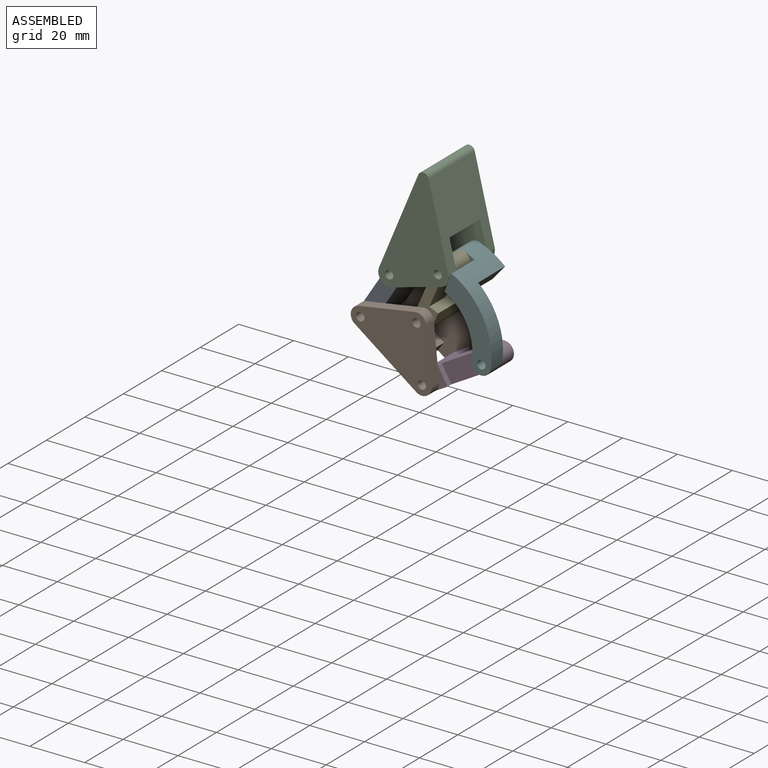
[diagram: assembled view]
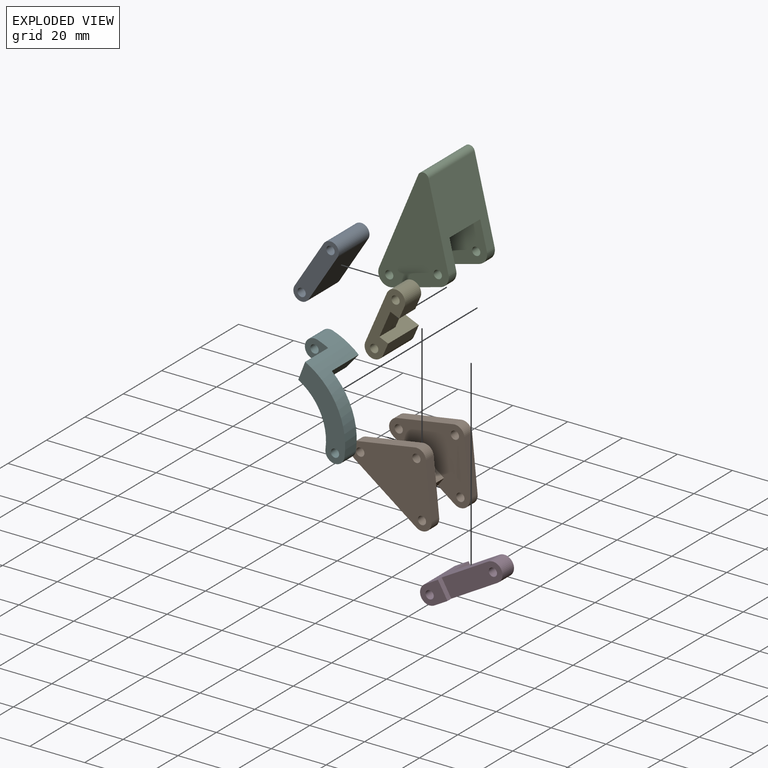
[diagram: exploded view]
GUIDED TOUR — MATED ASSEMBLY (Onshape document 30bc47aefb32f1628b6d9ee9, AutoMate assembly 30bc47aefb32f1628b6d9ee9_9f35e51de1579b1492619786_9b856f19b286847820a12c2f_default)

This assembly has 6 components, labeled P0..P5 below (a component is one placed occurrence of a part; the same part can appear more than once), held together by 7 mates. A mate is a constraint between two components; its type names the relative motion it leaves free:
  REVOLUTE — leaves rotation about the listed axis free (a hinge).
Axis/direction vectors are unit vectors and 'through' points are millimeter coordinates, both in the assembly's world frame.

MATES
  1. REVOLUTE "轉動 6": P5 <-> P2, axis (0.000, 1.000, 0.000) through (68.20, 163.56, -32.81) mm
  2. REVOLUTE "轉動 3": P3 <-> P1, axis (0.000, -1.000, 0.000) through (62.41, 163.56, -70.80) mm
  3. REVOLUTE "轉動 2": P0 <-> P1, axis (0.000, -1.000, 0.000) through (39.94, 147.56, -54.26) mm
  4. REVOLUTE "轉動 7": P3 <-> P5, axis (0.000, -1.000, 0.000) through (84.08, 149.56, -58.32) mm
  5. REVOLUTE "轉動 4": P2 <-> P0, axis (0.000, 1.000, 0.000) through (50.49, 147.56, -37.62) mm
  6. REVOLUTE "轉動 1": P2 <-> P4, axis (0.000, 1.000, 0.000) through (68.20, 147.56, -32.81) mm
  7. REVOLUTE "轉動 5": P4 <-> P1, axis (0.000, 1.000, 0.000) through (60.41, 163.56, -50.85) mm

ASSEMBLY ORDER
  1. P2 — the base component [order verified]
  2. P4 [order verified]
  3. P5 [order verified]
  4. P3 [order verified]
  5. P1 [order verified]
  6. P0 [order verified]
Order-tag legend:
  [order verified] — this step's position reverses a verified removal order: the component was checked to insert without passing through the ones already placed.

Of the 6 components, 2 carry the full construction recipe — the FeatureScript program that regenerates the part's solid from scratch; the rest are supplied as boundary geometry only.
Each toured component is shown spotlighted twice — in the assembled view, then in the exploded view, where a leader line traces a displaced component back to its assembled socket (saturated green if recipe-attached, orange if geometry-only; every other component desaturated gray) — followed by its recipe or geometry summary and the mates that hold it.
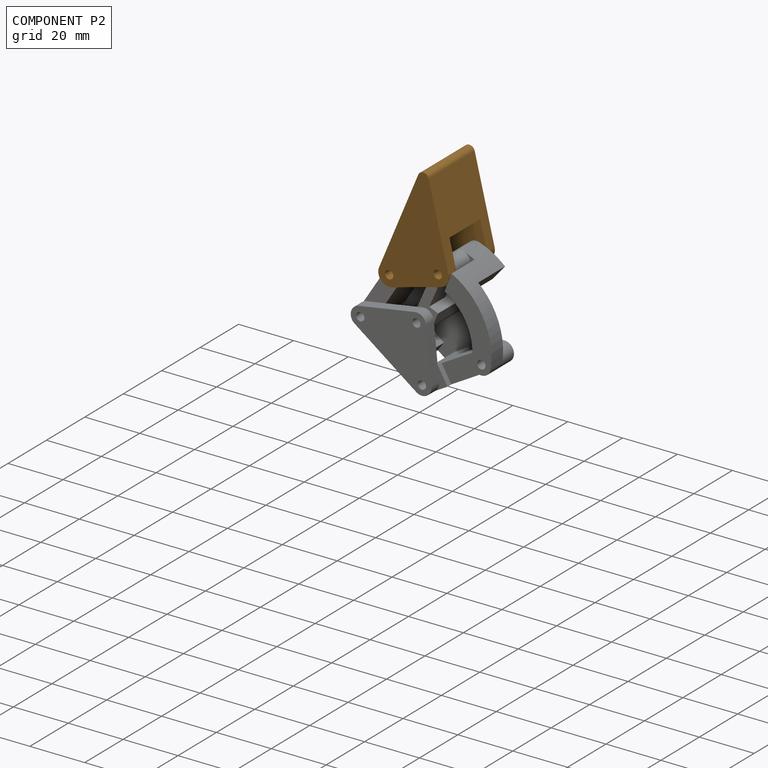
[diagram: component P2 — assembled]
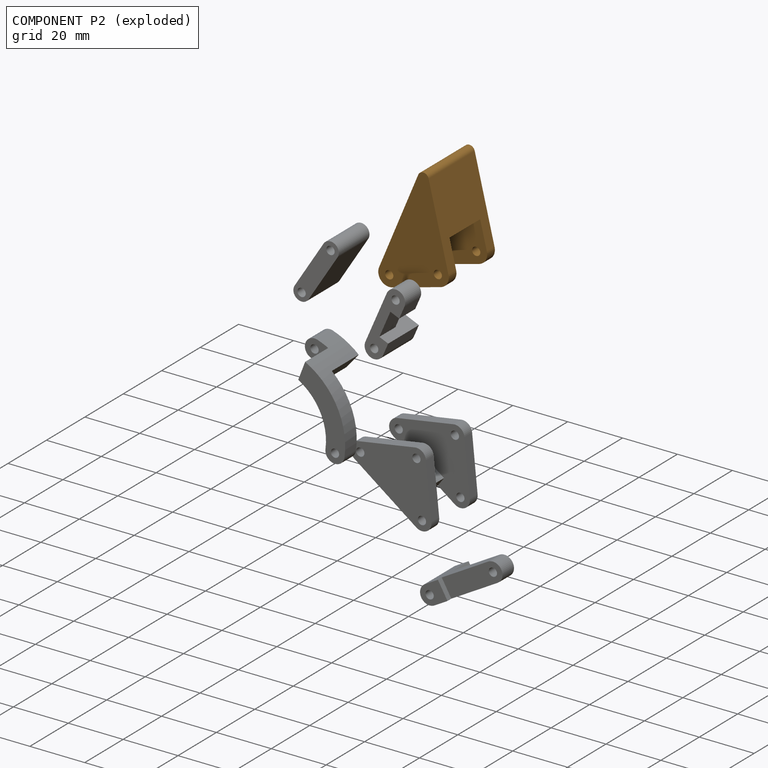
[diagram: component P2 — exploded]
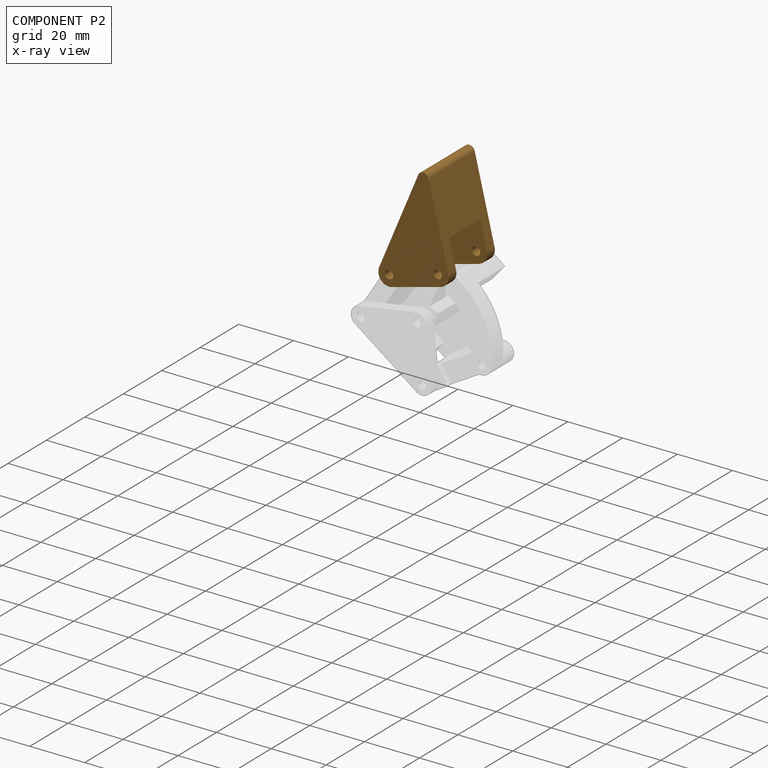
[diagram: component P2 — x-ray view]
COMPONENT P2 — geometry summary (no construction recipe available for this part):
  bounding box: 36.5 x 27.2 x 24.0 mm
  B-rep topology: 1 solid, 18 faces, 104 edges
  volume: 8675 mm^3 (36% of its bounding box)
  symmetry: mirror-symmetric across its y mid-plane
Held by: REVOLUTE mate "轉動 6" to P5; REVOLUTE mate "轉動 4" to P0; REVOLUTE mate "轉動 1" to P4.
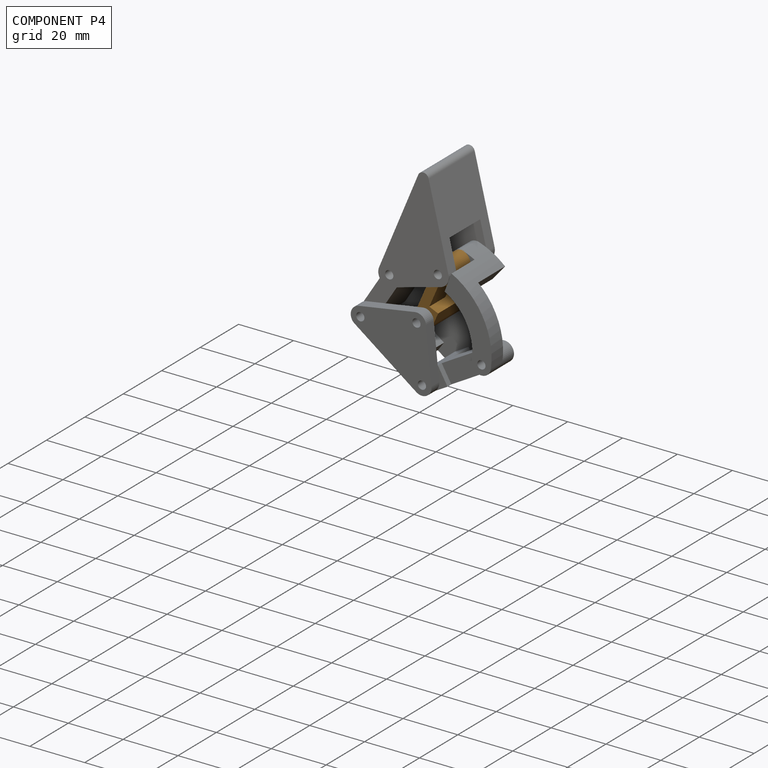
[diagram: component P4 — assembled]
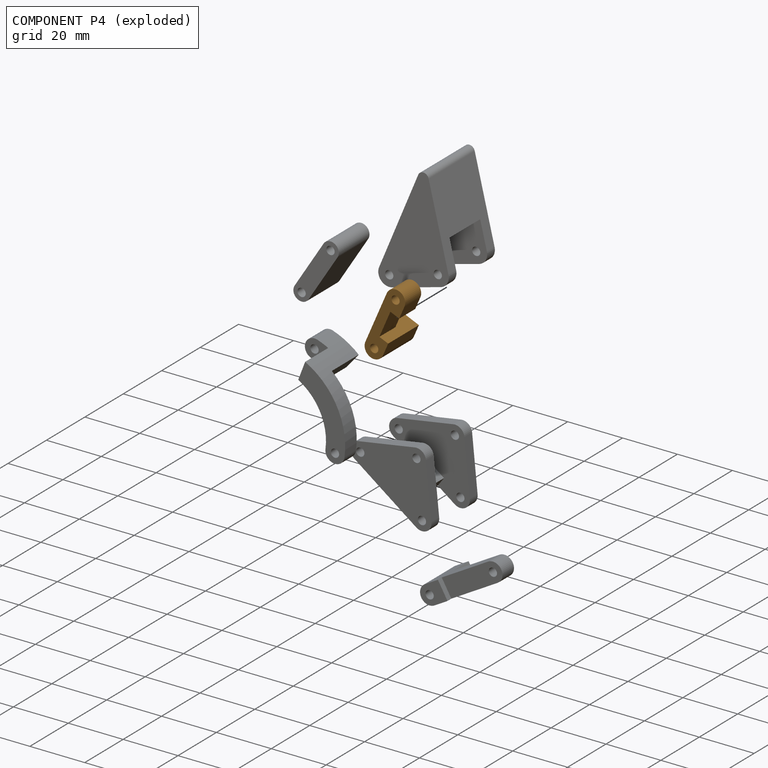
[diagram: component P4 — exploded]
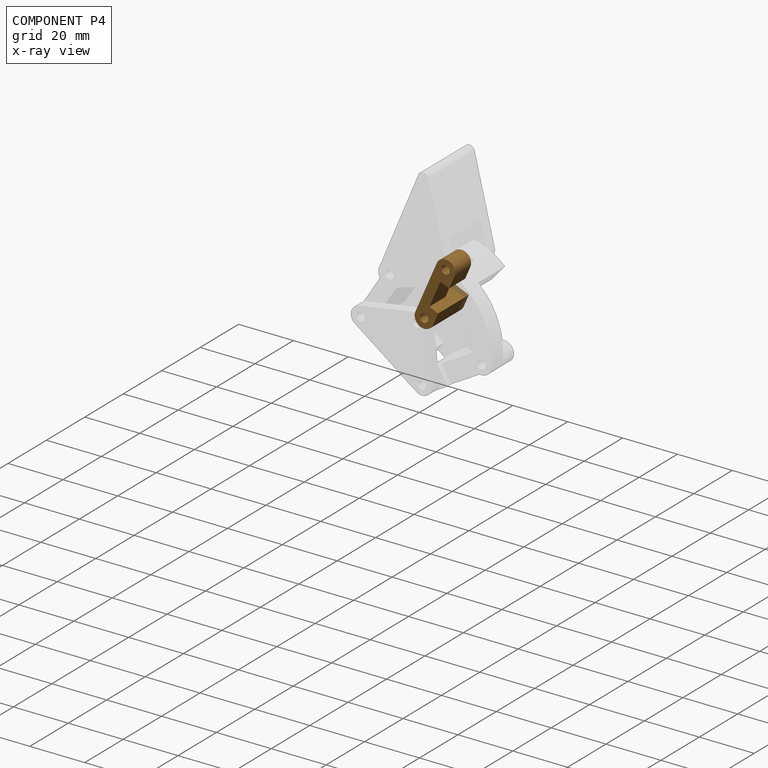
[diagram: component P4 — x-ray view]
COMPONENT P4 — geometry summary (no construction recipe available for this part):
  bounding box: 26.7 x 16.0 x 7.0 mm
  B-rep topology: 1 solid, 13 faces, 68 edges
  volume: 1402 mm^3 (47% of its bounding box)
Held by: REVOLUTE mate "轉動 1" to P2; REVOLUTE mate "轉動 5" to P1.
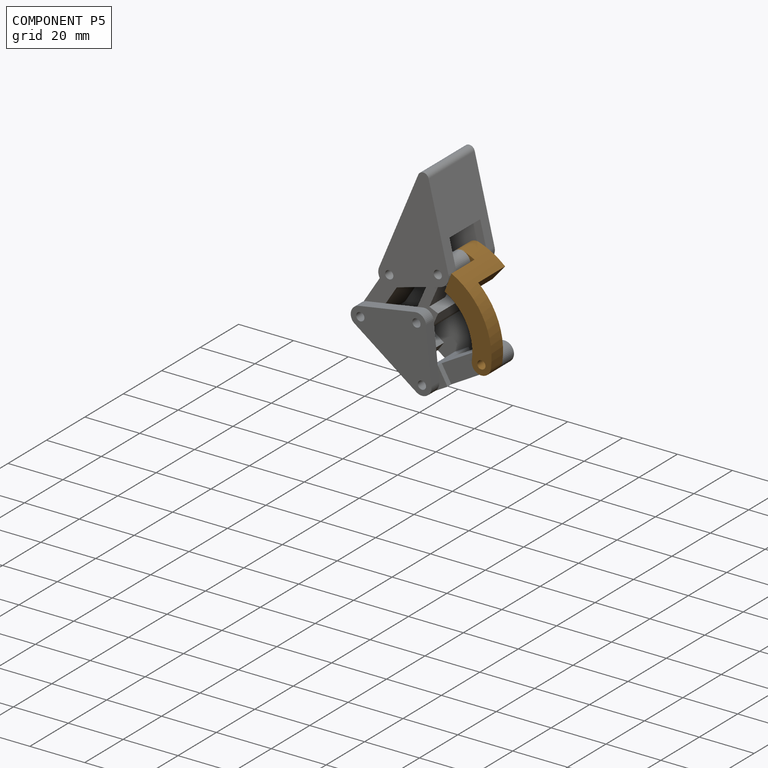
[diagram: component P5 — assembled]
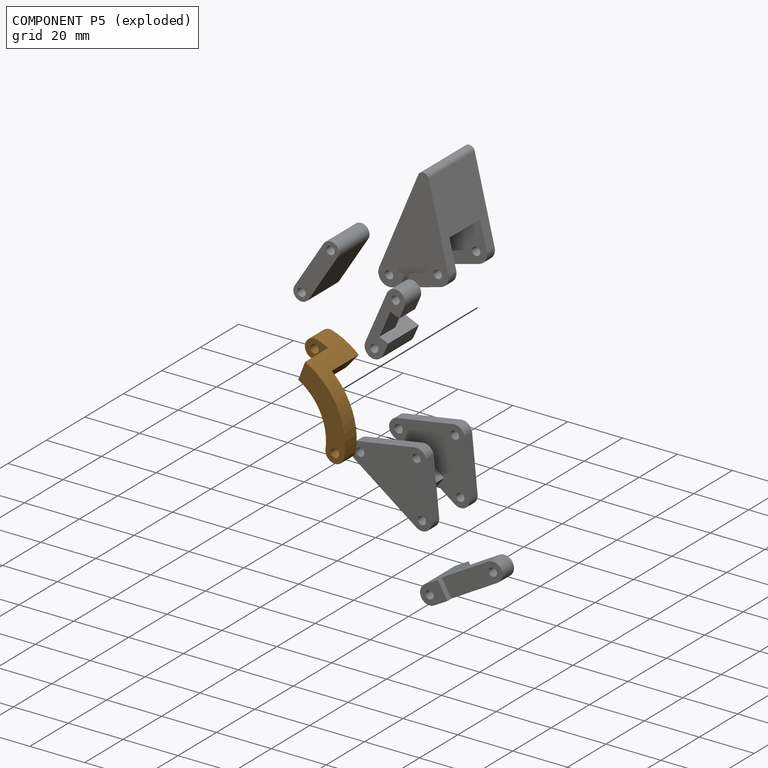
[diagram: component P5 — exploded]
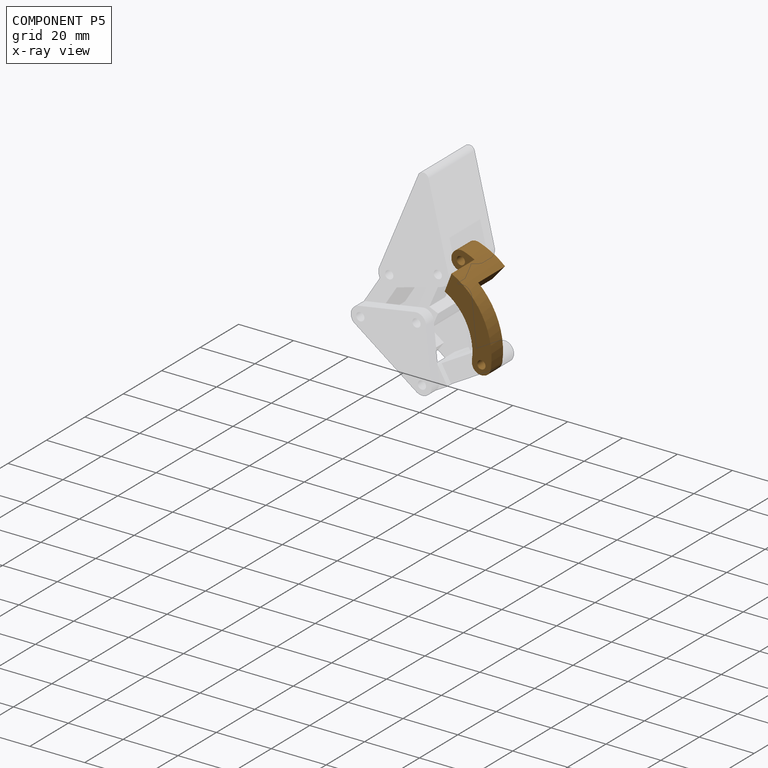
[diagram: component P5 — x-ray view]
COMPONENT P5 — geometry summary (no construction recipe available for this part):
  bounding box: 37.1 x 20.0 x 12.4 mm
  B-rep topology: 1 solid, 12 faces, 64 edges
  volume: 2139 mm^3 (23% of its bounding box)
Held by: REVOLUTE mate "轉動 6" to P2; REVOLUTE mate "轉動 7" to P3.
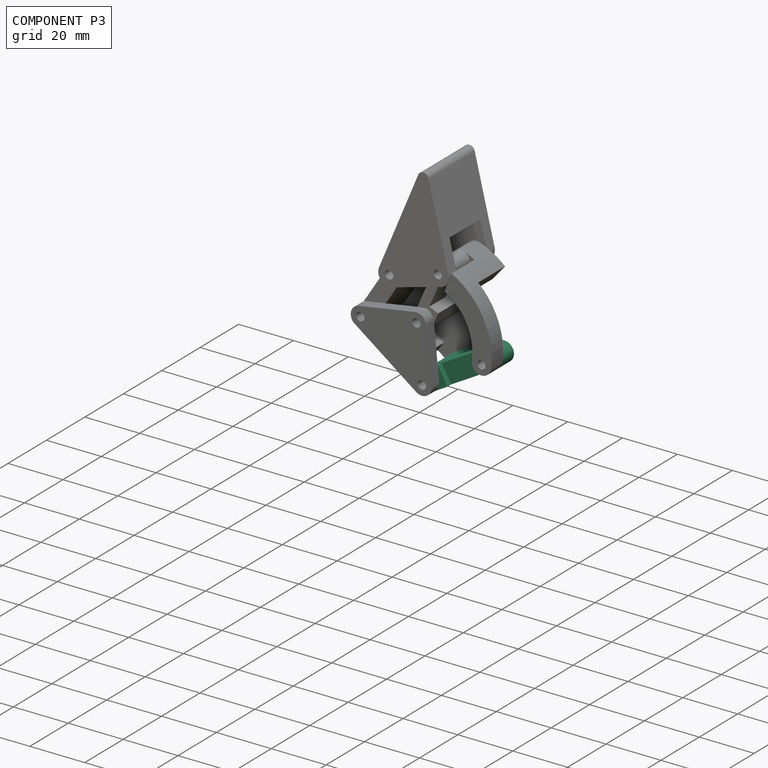
[diagram: component P3 — assembled]
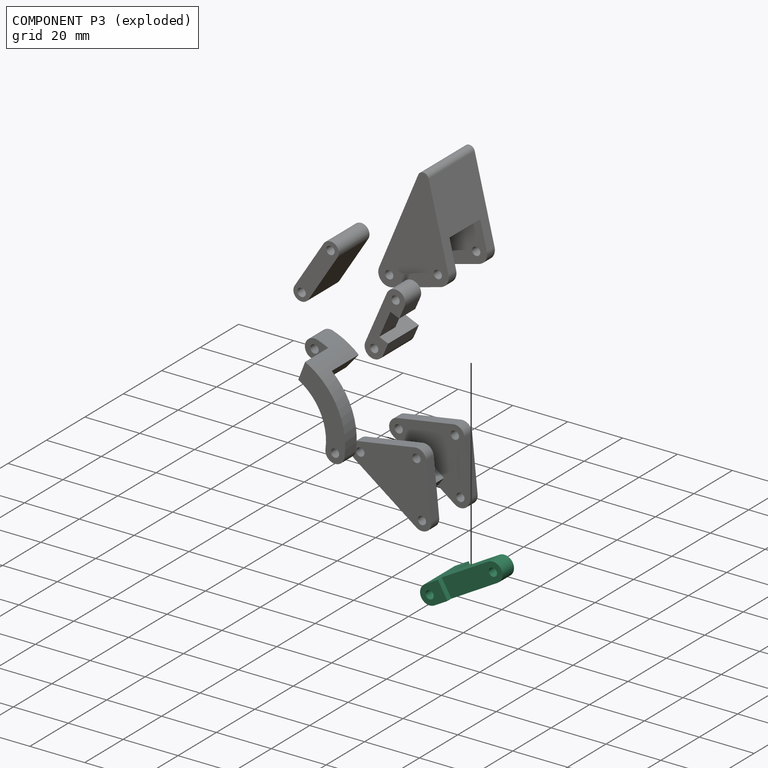
[diagram: component P3 — exploded]
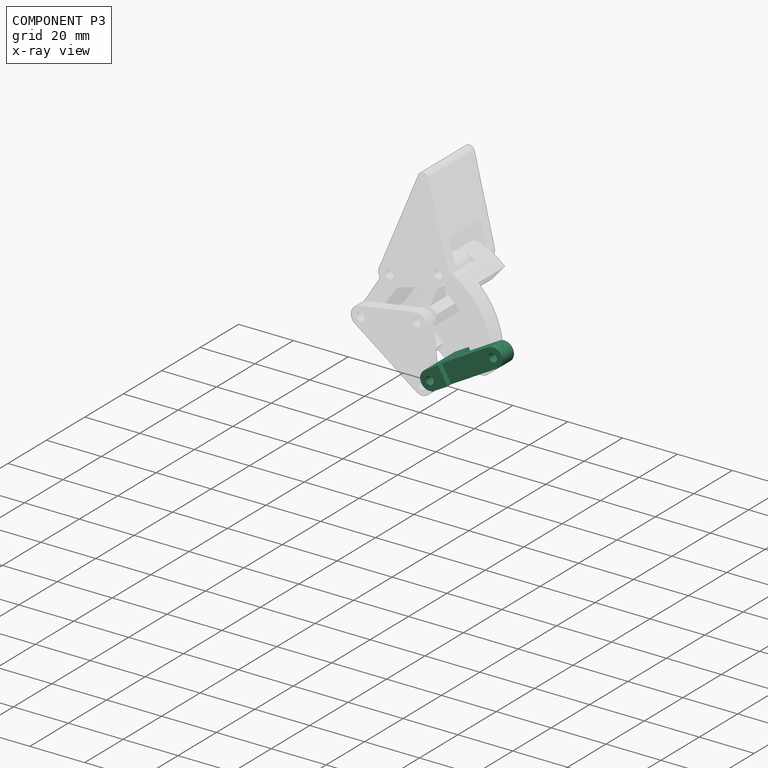
[diagram: component P3 — x-ray view]
COMPONENT P3 — recipe-attached (CADFS 00900207, mesh-verified: the recipe's output STEP matches this component's geometry to below the mesh-comparison resolution (tessellation chordal tolerance ~0.0547 mm)).
Held by: REVOLUTE mate "轉動 3" to P1; REVOLUTE mate "轉動 7" to P5.
Construction recipe (FeatureScript — the CAD program that rebuilds this solid; sketch coordinates are in the units given by the * unit suffixes, e.g. mm):

FeatureScript 1511;
import(path : "onshape/std/geometry.fs", version : "1511.0");
import(path : "onshape/std/common.fs", version : "1511.0");
const mm = millimeter;
const VERTEX = EntityType.VERTEX;
const EDGE = EntityType.EDGE;
const FACE = EntityType.FACE;
const BODY = EntityType.BODY;
function v(x, y){return vector(x, y);}
function OD(order){return orderDisambiguation(order);}
function OSD(set){return originalSetDisambiguation(set);}
function TD(topology){return topologyDisambiguation(topology);}
function TDD(query){return trueDependencyDisambiguation(query);}
function sQuery(a, b, c) {return sketchEntityQuery(a, b, c);}

annotation { "Feature Type Name" : "Feature", "Feature Type Description" : "" }
export const myFeature = defineFeature(function(context is Context, id is Id, definition is map)
    precondition{}
    {
        {
            var Q0;
            Q0=qCreatedBy(makeId("Front.planeOp"),FACE);
            var sketch = newSketch(context, id + "F0", { "sketchPlane" : qUnion([Q0])});
            skLineSegment(sketch, "E0", {"start": v(-12.5, 0) * mm, "end": v(12.5, 0) * mm});
            skArc(sketch, "E1", {"start": v(-12.5, 3.5) * mm, "mid": v(-16, 0) * mm, "end": v(-12.5, -3.5) * mm});
            skArc(sketch, "E2", {"start": v(12.5, -3.5) * mm, "mid": v(16, 0) * mm, "end": v(12.5, 3.5) * mm});
            skLineSegment(sketch, "E3", {"start": v(12.5, 3.5) * mm, "end": v(-12.5, 3.5) * mm});
            skLineSegment(sketch, "E4", {"start": v(-12.5, -3.5) * mm, "end": v(12.5, -3.5) * mm});
            skCircle(sketch, "E5", {"center": v(-12.5, 0) * mm, "radius": 1.5 * mm});
            skCircle(sketch, "E6", {"center": v(12.5, 0) * mm, "radius": 1.5 * mm});
            skSolve(sketch);
        }
        {
            var Q0;
            Q0 = qSketchRegion(id + "F0", true);
            extrude(context, id + "F1", {"entities" : qUnion([Q0]), "endBound" : BoundingType.SYMMETRIC, "depth" : 16 * mm, "offsetDistance" : 25.4 * mm});
        }
        {
            var Q0;
            Q0=makeQuery(id+"F1.opExtrude","SWEPT_FACE",FACE,{"disambiguationData":[OSD([sQuery(id+"F0.wireOp",EDGE,"E3")])]});
            var sketch = newSketch(context, id + "F2", { "sketchPlane" : qUnion([Q0])});
            skLineSegment(sketch, "E7.bottom", {"start": v(33.74, 21.66) * mm, "end": v(-7, 21.66) * mm});
            skLineSegment(sketch, "E7.top", {"start": v(33.74, 6) * mm, "end": v(-7, 6) * mm});
            skLineSegment(sketch, "E7.left", {"start": v(33.74, 21.66) * mm, "end": v(33.74, 6) * mm});
            skLineSegment(sketch, "E7.right", {"start": v(-7, 21.66) * mm, "end": v(-7, 6) * mm});
            skLineSegment(sketch, "E8.bottom", {"start": v(38.29, -22.4) * mm, "end": v(-7, -22.4) * mm});
            skLineSegment(sketch, "E8.top", {"start": v(38.29, 0) * mm, "end": v(-7, 0) * mm});
            skLineSegment(sketch, "E8.left", {"start": v(38.29, -22.4) * mm, "end": v(38.29, 0) * mm});
            skLineSegment(sketch, "E8.right", {"start": v(-7, -22.4) * mm, "end": v(-7, 0) * mm});
            skSolve(sketch);
        }
        {
            var Q0;
            Q0 = qSketchRegion(id + "F2", true);
            extrude(context, id + "F3", {"entities" : qUnion([Q0]), "operationType" : NewBodyOperationType.REMOVE, "oppositeDirection" : true, "depth" : 25.4 * mm, "offsetDistance" : 25.4 * mm});
        }
    });
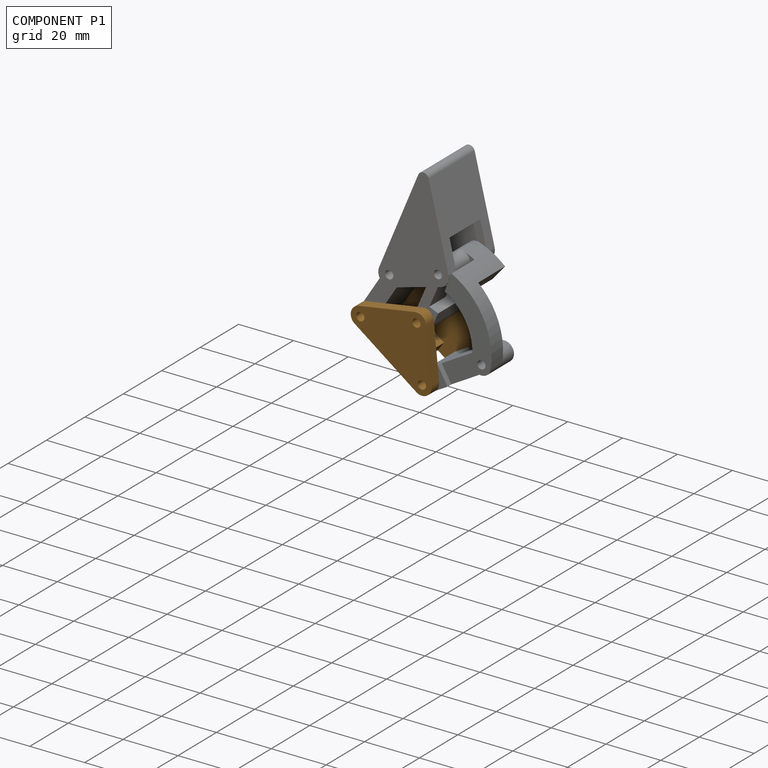
[diagram: component P1 — assembled]
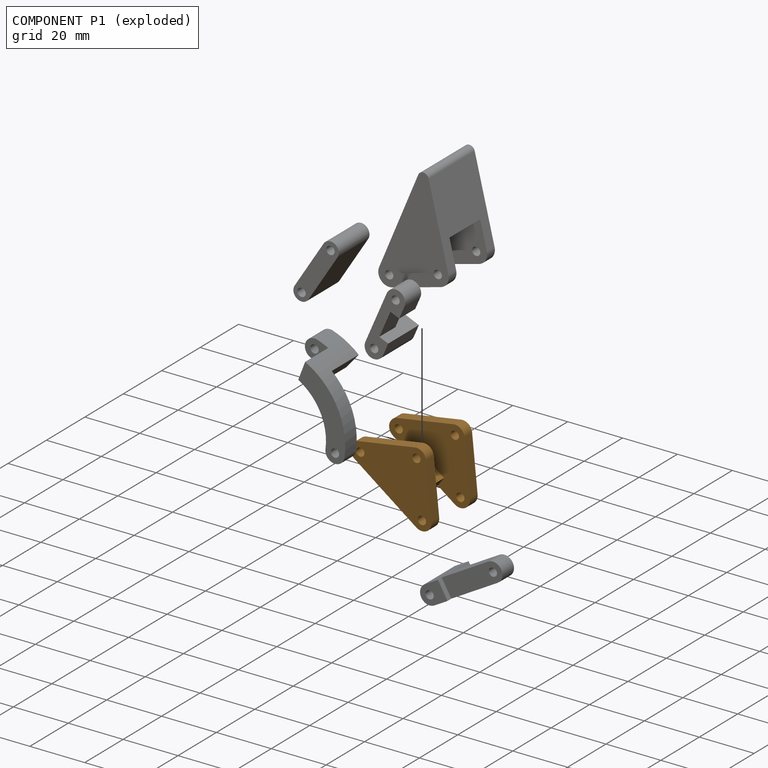
[diagram: component P1 — exploded]
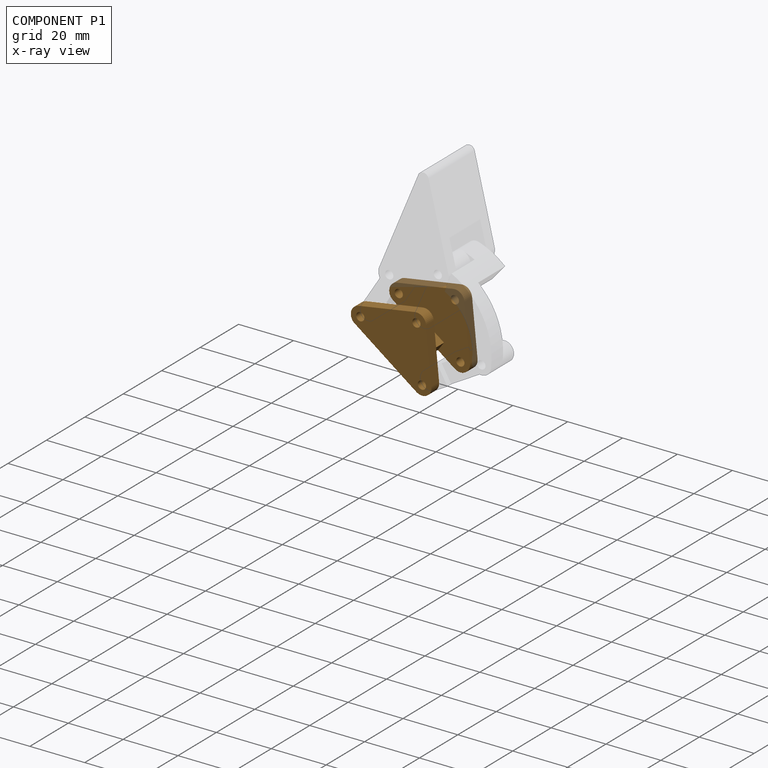
[diagram: component P1 — x-ray view]
COMPONENT P1 — geometry summary (no construction recipe available for this part):
  bounding box: 27.7 x 27.1 x 24.0 mm
  B-rep topology: 1 solid, 24 faces, 144 edges
  volume: 4419 mm^3 (25% of its bounding box)
  symmetry: mirror-symmetric across its y mid-plane
Held by: REVOLUTE mate "轉動 3" to P3; REVOLUTE mate "轉動 2" to P0; REVOLUTE mate "轉動 5" to P4.
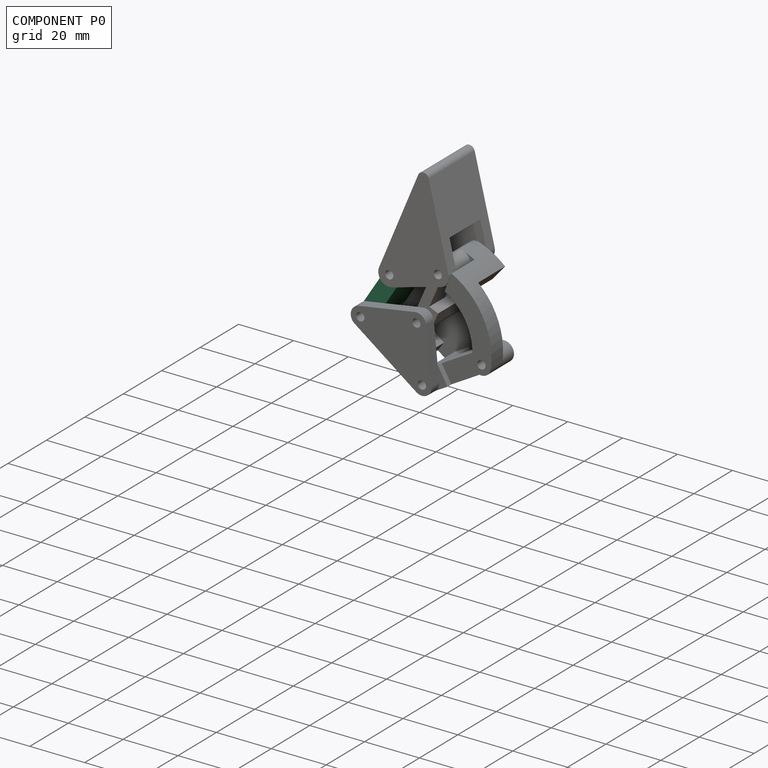
[diagram: component P0 — assembled]
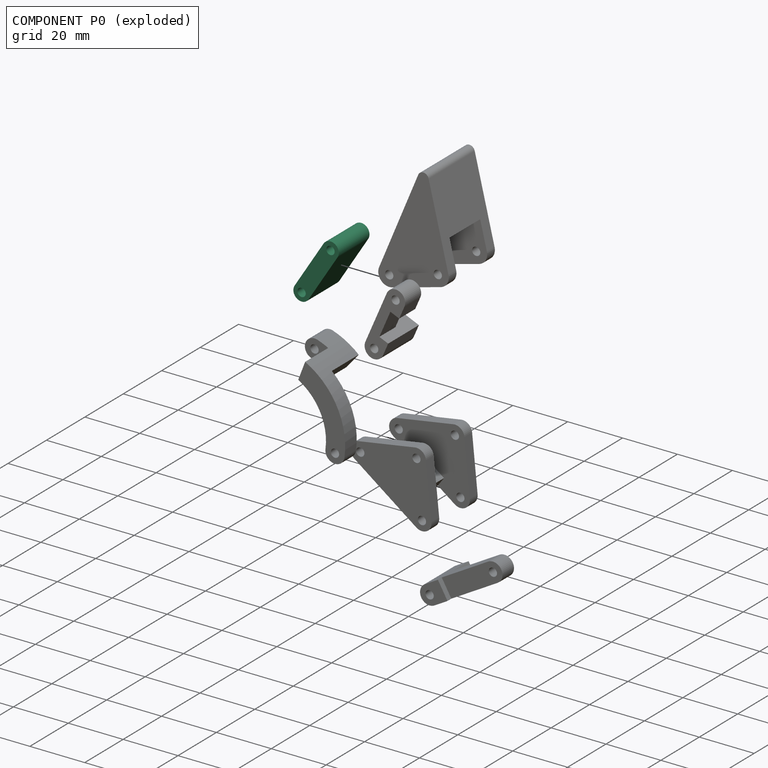
[diagram: component P0 — exploded]
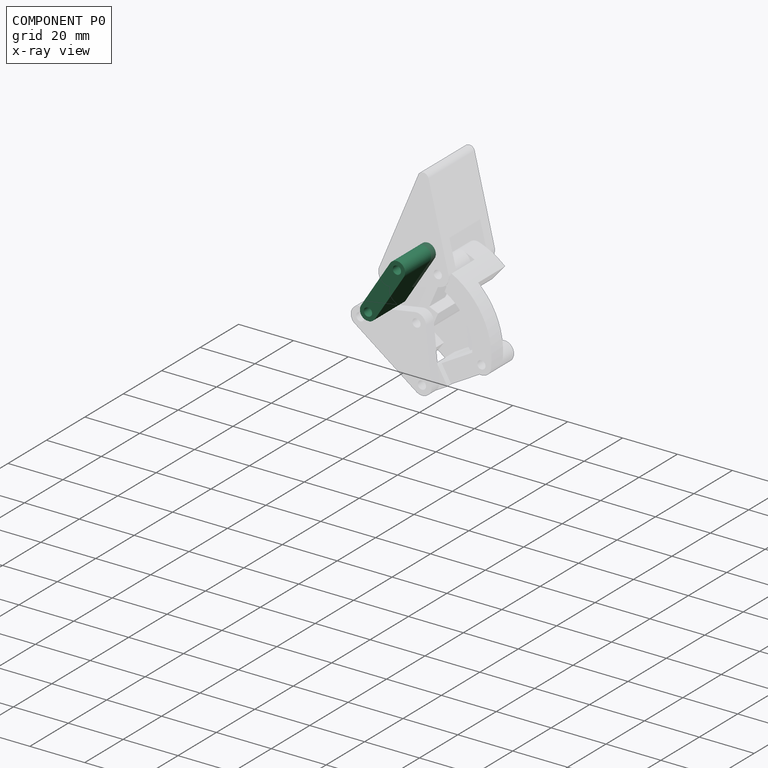
[diagram: component P0 — x-ray view]
COMPONENT P0 — recipe-attached (CADFS 00900202, mesh-verified: the recipe's output STEP matches this component's geometry to below the mesh-comparison resolution (tessellation chordal tolerance ~0.0463 mm)).
Held by: REVOLUTE mate "轉動 2" to P1; REVOLUTE mate "轉動 4" to P2.
Construction recipe (FeatureScript — the CAD program that rebuilds this solid; sketch coordinates are in the units given by the * unit suffixes, e.g. mm):

FeatureScript 1511;
import(path : "onshape/std/geometry.fs", version : "1511.0");
import(path : "onshape/std/common.fs", version : "1511.0");
const mm = millimeter;
const VERTEX = EntityType.VERTEX;
const EDGE = EntityType.EDGE;
const FACE = EntityType.FACE;
const BODY = EntityType.BODY;
function v(x, y){return vector(x, y);}
function OD(order){return orderDisambiguation(order);}
function OSD(set){return originalSetDisambiguation(set);}
function TD(topology){return topologyDisambiguation(topology);}
function TDD(query){return trueDependencyDisambiguation(query);}
function sQuery(a, b, c) {return sketchEntityQuery(a, b, c);}

annotation { "Feature Type Name" : "Feature", "Feature Type Description" : "" }
export const myFeature = defineFeature(function(context is Context, id is Id, definition is map)
    precondition{}
    {
        {
            var Q0;
            Q0=qCreatedBy(makeId("Front.planeOp"),FACE);
            var sketch = newSketch(context, id + "F0", { "sketchPlane" : qUnion([Q0])});
            skLineSegment(sketch, "E0", {"start": v(-9.85, 0) * mm, "end": v(9.85, 0) * mm});
            skCircle(sketch, "E1", {"center": v(9.85, 0) * mm, "radius": 1.5 * mm});
            skCircle(sketch, "E2", {"center": v(-9.85, 0) * mm, "radius": 1.5 * mm});
            skPoint(sketch, "E3.visualSharp", {"position": v(-66.12, -69.63) * mm});
            skArc(sketch, "E3.filletArc", {"start": v(-51.94, -37.1) * mm, "mid": v(-52.74, -38.3) * mm, "end": v(-51.92, -39.49) * mm});
            skArc(sketch, "E4", {"start": v(-9.85, 3) * mm, "mid": v(-12.85, 0) * mm, "end": v(-9.85, -3) * mm});
            skArc(sketch, "E5", {"start": v(9.85, -3) * mm, "mid": v(12.85, 0) * mm, "end": v(9.85, 3) * mm});
            skLineSegment(sketch, "E6", {"start": v(9.85, 3) * mm, "end": v(-9.85, 3) * mm});
            skLineSegment(sketch, "E7", {"start": v(-9.85, -3) * mm, "end": v(9.85, -3) * mm});
            skSolve(sketch);
        }
        {
            var Q0;
            Q0 = qSketchRegion(id + "F0", true);
            extrude(context, id + "F1", {"entities" : qUnion([Q0]), "endBound" : BoundingType.SYMMETRIC, "depth" : 16 * mm, "offsetDistance" : 25.4 * mm});
        }
    });
PROVENANCE & LICENSES
Assembly (occurrences, transforms, mates, per-part STEP geometry): AutoMate dataset, Zenodo record 7776208, CC0.
Construction recipes: CADFS (HuggingFace VladPyatov/CADFS, CC-BY-4.0, layered over the ABC dataset), FeatureScript reconstruction programs keyed by ABC model id.
Join: ABC meta listings map ABC model id -> Onshape documentId; within a shared document, parts are matched by geometric signature (bounding-box dims + volume at 0.1% relative tolerance, exact B-rep face/solid counts).
Verification: 2 of this assembly's 6 components carry a recipe attachment, and every attachment is mesh-verified: the CADFS STEP and the AutoMate member STEP were compared as meshes in their shared local frame (symmetric sampled-point-to-mesh distance); worst across the 2 attachments: below the mesh-comparison resolution (tessellation chordal tolerance ~0.0547 mm) on a 36 mm part.
Renders: orthographic iso camera (az 35 / el 25); the floor grid conveys scale (grid pitch printed in each image; no ruler). In the exploded view each component is displaced by its stored offset vector: the offsets alone carry the explosion direction (mate normal/axis signs are not orientation cues and do not encode it), and separation distances are assigned per mate-chain, not proportionally to assembly-order depth.
